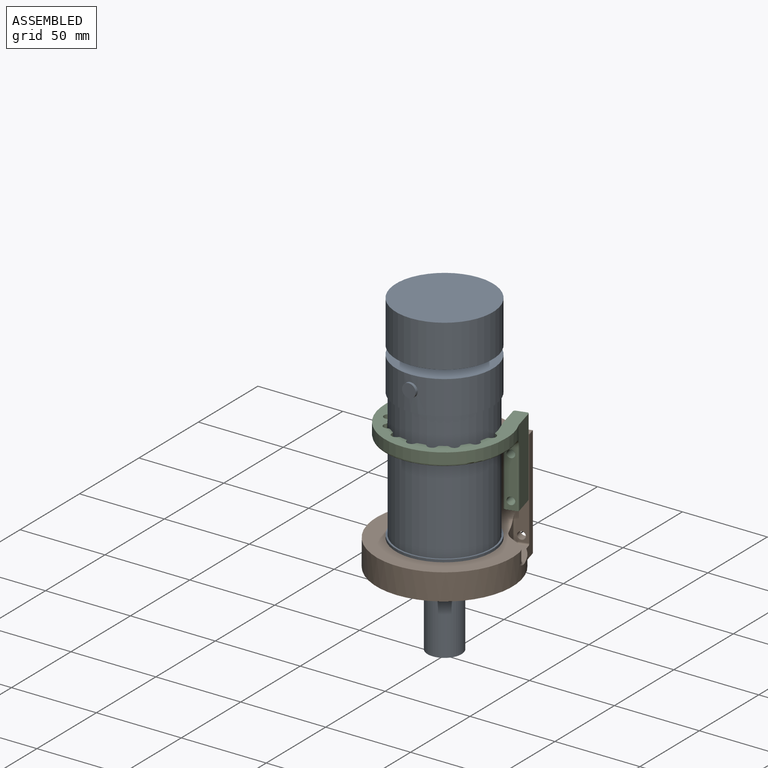
[diagram: assembled view]
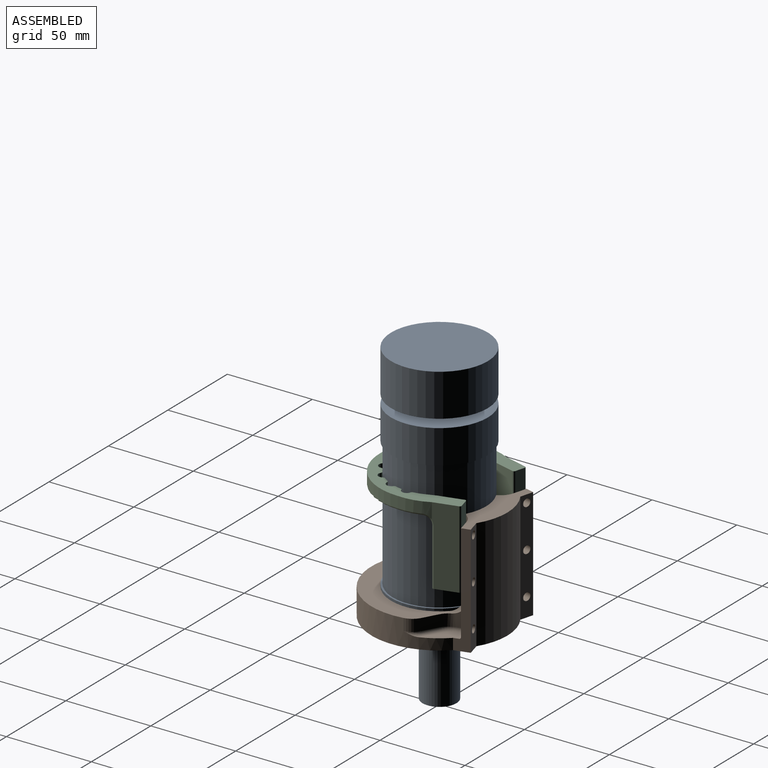
[diagram: assembled view, second angle]
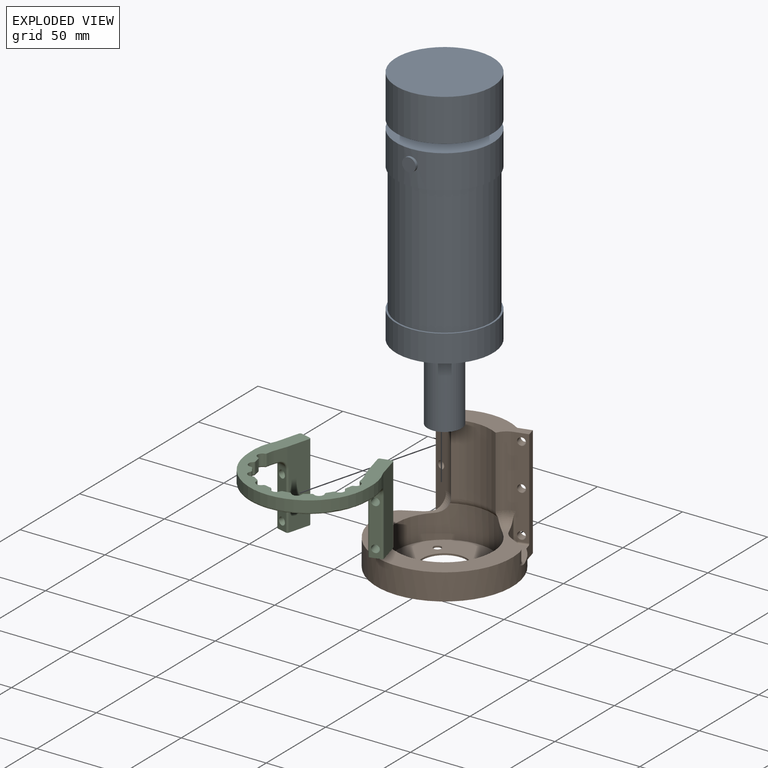
[diagram: exploded view]
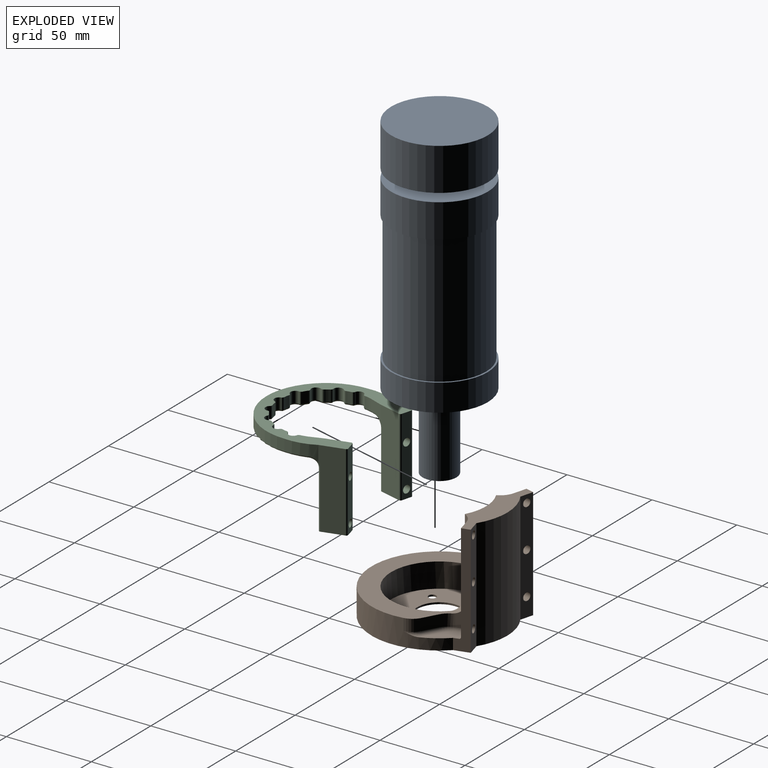
[diagram: exploded view, second angle]
ASSEMBLY  parts=3 mates=2
PART A: 25 faces, bbox 58.5x57x187 mm
  f0: cylinder r=28.5mm len=57mm, axis (0,0,-1), area 3531mm2, adj f2,f7,f23
  f1: cylinder r=4mm len=8mm, axis (0,0,1), area 125.7mm2, adj f2,f4
  f2: plane 57x57mm, normal (0,0,-1), area 2501.5mm2, adj f0,f1
  f3: cylinder r=28.5mm len=57mm, axis (0,0,-1), area 4476.8mm2, adj f4,f5
  f4: plane 57x57mm, normal (0,0,1), area 2501.5mm2, adj f1,f3
  f5: plane 57x57mm, normal (0,0,-1), area 2551.8mm2, adj f3
  f6: cylinder r=27.5mm len=76mm, axis (0,0,1), area 13131.9mm2, adj f7,f8
  f7: plane 57x57mm, normal (0,0,1), area 175.9mm2, adj f0,f6
  f8: plane 57x57mm, normal (0,0,-1), area 175.9mm2, adj f6,f22
  f9: plane 20x20mm, normal (0,0,1), area 314.2mm2, adj f10
  f10: cylinder r=10mm len=43mm, axis (0,0,-1), area 2701.8mm2, adj f9,f11
  f11: plane 25x25mm, normal (0,0,1), area 176.7mm2, adj f10,f16
  f12: plane 4x4mm, normal (0,0,1), area 12.6mm2, adj f17
  f13: plane 4x4mm, normal (0,0,1), area 12.6mm2, adj f18
  f14: plane 4x4mm, normal (0,0,1), area 12.6mm2, adj f19
  f15: plane 4x4mm, normal (0,0,1), area 12.6mm2, adj f20
  f16: cylinder r=12.5mm len=25mm, axis (0,0,-1), area 157.1mm2, adj f11,f21
  f17: cylinder r=2mm len=25mm, axis (0,0,1), area 314.2mm2, adj f12,f21
  f18: cylinder r=2mm len=25mm, axis (0,0,1), area 314.2mm2, adj f13,f21
  f19: cylinder r=2mm len=25mm, axis (0,0,1), area 314.2mm2, adj f14,f21
  f20: cylinder r=2mm len=25mm, axis (0,0,1), area 314.2mm2, adj f15,f21
  f21: plane 57x57mm, normal (0,0,1), area 2010.6mm2, adj f16,f17,f18,f19,f20,f22
  f22: cylinder r=28.5mm len=57mm, axis (0,0,-1), area 2865.1mm2, adj f8,f21
  f23: cylinder r=4mm len=8mm, axis (-1,0,0), area 41.2mm2, adj f0,f24
  f24: plane 8x8mm, normal (1,0,0), area 50.3mm2, adj f23
PART B: 62 faces, bbox 87.9x80x65.5 mm
  f0: cylinder r=8mm len=3.87mm, axis (0.97,-0.26,0), area 1.6mm2, adj f14,f48,f60
  f1: cylinder r=8mm len=2.26mm, axis (-0.97,-0.26,0), area 0.3mm2, adj f3,f36,f57
  f2: cylinder r=28.5mm len=57mm, axis (0,0,-1), area 2764.9mm2, adj f3,f27,f55,f56,f59
  f3: plane 80x62.22mm, normal (0,0,1), area 1630.6mm2, adj f1,f2,f4,f12,f15,f34,f35,f36
  f4: cylinder r=40mm len=80mm, axis (0,0,-1), area 2479mm2, adj f3,f7,f8,f13,f17,f33,f35,f37
  f5: cylinder r=35mm len=65.5mm, axis (0,0,-1), area 2553.5mm2, adj f6,f9,f20,f33
  f6: plane 65.5x7.73mm, normal (0.26,0.97,0), area 476.3mm2, adj f5,f7,f20,f21,f22,f23,f33
  f7: plane 65.5x8.8mm, normal (-0.97,0.26,0), area 354.4mm2, adj f4,f6,f14,f17,f20,f33,f46
  f8: plane 65.5x8.8mm, normal (0.97,0.26,0), area 354.4mm2, adj f4,f9,f10,f13,f20,f33,f49
  f9: plane 65.5x7.73mm, normal (-0.26,0.97,0), area 476.3mm2, adj f5,f8,f20,f24,f25,f26,f33
  f10: plane 58x7.73mm, normal (0.26,-0.97,0), area 400.1mm2, adj f8,f19,f20,f24,f25,f26,f49,f50
  f11: plane 11.13x4.57mm, normal (0.97,0.26,0), area 41.2mm2, adj f36,f41,f51,f57
  f12: plane 8.3x7mm, normal (0.48,0.88,0), area 66.3mm2, adj f3,f36,f37,f39
  f13: plane 17.12x15.54mm, normal (0,0,1), area 100.5mm2, adj f4,f8,f38,f39,f40,f41,f49
  f14: plane 58x7.73mm, normal (-0.26,-0.97,0), area 400.1mm2, adj f0,f7,f18,f20,f21,f22,f23,f46
  f15: plane 8.3x7mm, normal (-0.48,0.88,0), area 66.3mm2, adj f3,f34,f35,f43
  f16: plane 11.13x4.57mm, normal (-0.97,0.26,0), area 41.2mm2, adj f34,f45,f48,f60
  f17: plane 17.12x15.54mm, normal (0,0,1), area 100.5mm2, adj f4,f7,f42,f43,f44,f45,f46
  f18: cylinder r=10mm len=42mm, axis (0,0,-1), area 338.8mm2, adj f14,f20,f52,f60
  f19: cylinder r=10mm len=42mm, axis (0,0,-1), area 338.8mm2, adj f10,f20,f54,f57
  f20: plane 55.04x15.84mm, normal (0,0,1), area 515.1mm2, adj f5,f6,f7,f8,f9,f10,f14,f18
  f21: cylinder r=2.25mm len=5.99mm, axis (0.26,0.97,0), area 70.7mm2, adj f6,f14
  f22: cylinder r=2.25mm len=5.99mm, axis (0.26,0.97,0), area 70.7mm2, adj f6,f14
  f23: cylinder r=2.25mm len=5.99mm, axis (0.26,0.97,0), area 70.7mm2, adj f6,f14
  f24: cylinder r=2.25mm len=5.99mm, axis (-0.26,0.97,0), area 70.7mm2, adj f9,f10
  f25: cylinder r=2.25mm len=5.99mm, axis (-0.26,0.97,0), area 70.7mm2, adj f9,f10
  f26: cylinder r=2.25mm len=5.99mm, axis (-0.26,0.97,0), area 70.7mm2, adj f9,f10
  f27: plane 57x57mm, normal (0,0,1), area 1957.2mm2, adj f2,f28,f29,f30,f31,f32
  f28: cylinder r=2.25mm len=4.5mm, axis (0,0,1), area 14.1mm2, adj f27,f33
  f29: cylinder r=2.25mm len=4.5mm, axis (0,0,1), area 14.1mm2, adj f27,f33
  f30: cylinder r=2.25mm len=4.5mm, axis (0,0,1), area 14.1mm2, adj f27,f33
  f31: cylinder r=2.25mm len=4.5mm, axis (0,0,1), area 14.1mm2, adj f27,f33
  f32: cylinder r=13mm len=26mm, axis (0,0,1), area 81.7mm2, adj f27,f33
  f33: plane 80x80mm, normal (0,0,-1), area 4480.5mm2, adj f4,f5,f6,f7,f8,f9,f28,f29
  f34: cylinder r=10mm len=7.33mm, axis (0,0,-1), area 56.8mm2, adj f3,f15,f16,f44,f61
  f35: cylinder r=10mm len=7.15mm, axis (0,0,-1), area 63.4mm2, adj f3,f4,f15,f42
  f36: cylinder r=10mm len=7.33mm, axis (0,0,-1), area 56.8mm2, adj f1,f3,f11,f12,f40
  f37: cylinder r=10mm len=7.15mm, axis (0,0,-1), area 63.4mm2, adj f3,f4,f12,f38
  f38: torus R=12mm, axis (0,0,1), area 17.6mm2, adj f4,f13,f37,f39
  f39: cylinder r=2mm len=9.26mm, axis (0.88,-0.48,0), area 29.7mm2, adj f12,f13,f38,f40
  f40: torus R=8mm, axis (0,0,1), area 23.5mm2, adj f13,f36,f39,f41
  f41: cylinder r=2mm len=5.09mm, axis (0.26,-0.97,0), area 14.9mm2, adj f11,f13,f40,f50
  f42: torus R=12mm, axis (0,0,1), area 17.6mm2, adj f4,f17,f35,f43
  f43: cylinder r=2mm len=9.26mm, axis (0.88,0.48,0), area 29.7mm2, adj f15,f17,f42,f44
  f44: torus R=8mm, axis (0,0,1), area 23.5mm2, adj f17,f34,f43,f45
  f45: cylinder r=2mm len=5.09mm, axis (0.26,0.97,0), area 14.9mm2, adj f16,f17,f44,f47
  f46: cylinder r=1mm len=6.05mm, axis (-0.97,0.26,0), area 9.4mm2, adj f7,f14,f17,f47
  f47: torus R=1mm, axis (0.26,0.97,0), area 4mm2, adj f14,f45,f46,f48
  f48: cylinder r=1mm len=15mm, axis (0,0,1), area 20.5mm2, adj f0,f14,f16,f47
  f49: cylinder r=1mm len=6.05mm, axis (-0.97,-0.26,0), area 9.4mm2, adj f8,f10,f13,f50
  f50: torus R=1mm, axis (0.26,-0.97,0), area 4mm2, adj f10,f41,f49,f51
  f51: cylinder r=1mm len=15mm, axis (0,0,1), area 20.5mm2, adj f10,f11,f50,f58
  f52: plane 42x0.88mm, normal (-0.88,-0.48,0), area 42mm2, adj f18,f20,f53,f59
  f53: cylinder r=27.5mm len=42mm, axis (0,0,-1), area 1150.4mm2, adj f20,f52,f54,f55
  f54: plane 42x0.88mm, normal (0.88,-0.48,0), area 42mm2, adj f19,f20,f53,f56
  f55: torus R=32.5mm, axis (0,0,-1), area 91.1mm2, adj f2,f53,f56,f59
  f56: cylinder r=8mm len=8mm, axis (0.48,0.88,0), area 5.2mm2, adj f2,f3,f54,f55,f57
  f57: torus R=2mm, axis (0,0,1), area 71.9mm2, adj f1,f3,f11,f19,f56,f58
  f58: cylinder r=8mm len=3.87mm, axis (-0.97,-0.26,0), area 1.6mm2, adj f10,f51,f57
  f59: cylinder r=8mm len=8mm, axis (-0.48,0.88,0), area 5.2mm2, adj f2,f3,f52,f55,f60
  f60: torus R=2mm, axis (0,0,1), area 71.9mm2, adj f0,f3,f16,f18,f59,f61
  f61: cylinder r=8mm len=2.26mm, axis (0.97,-0.26,0), area 0.3mm2, adj f3,f34,f60
PART C: 118 faces, bbox 75.8x69.7x46 mm
  f0: plane 68.19x46.56mm, normal (0,0,1), area 539.4mm2, adj f58,f59,f63,f64,f65,f66,f67,f68
  f1: cylinder r=2.75mm len=6.5mm, axis (0,0,-1), area 47.2mm2, adj f31,f32,f49,f74
  f2: cylinder r=27.55mm len=6.5mm, axis (0,0,-1), area 22mm2, adj f31,f32,f33,f76
  f3: cylinder r=2.75mm len=6.5mm, axis (0,0,-1), area 47.2mm2, adj f31,f33,f34,f78
  f4: cylinder r=27.55mm len=6.5mm, axis (0,0,-1), area 22mm2, adj f31,f34,f35,f80
  f5: cylinder r=2.75mm len=6.5mm, axis (0,0,-1), area 47.2mm2, adj f31,f35,f36,f82
  f6: cylinder r=27.55mm len=6.5mm, axis (0,0,-1), area 22mm2, adj f31,f36,f37,f84
  f7: cylinder r=2.75mm len=6.5mm, axis (0,0,-1), area 47.2mm2, adj f31,f37,f38,f86
  f8: cylinder r=27.55mm len=6.5mm, axis (0,0,-1), area 22mm2, adj f31,f38,f39,f88
  f9: cylinder r=2.75mm len=6.5mm, axis (0,0,-1), area 47.2mm2, adj f31,f39,f40,f90
  f10: cylinder r=27.55mm len=6.5mm, axis (0,0,-1), area 22mm2, adj f31,f40,f41,f92
  f11: cylinder r=2.75mm len=6.5mm, axis (0,0,-1), area 47.2mm2, adj f31,f41,f42,f94
  f12: cylinder r=27.55mm len=6.5mm, axis (0,0,-1), area 22mm2, adj f31,f42,f43,f97
  f13: cylinder r=2.75mm len=6.5mm, axis (0,0,-1), area 47.2mm2, adj f31,f43,f44,f101
  f14: cylinder r=27.55mm len=6.5mm, axis (0,0,-1), area 28mm2, adj f15,f31,f44,f104
  f15: plane 9.29x7.49mm, normal (0.94,-0.34,0), area 55.9mm2, adj f14,f16,f31,f98,f100,f102
  f16: plane 46x13.52mm, normal (0.97,-0.26,0), area 608.2mm2, adj f15,f31,f55,f96,f98,f114
  f17: plane 46x5.8mm, normal (0.26,0.97,0), area 244.2mm2, adj f31,f54,f55,f56,f114,f115
  f18: plane 46.05x13.64mm, normal (-0.97,0.26,0), area 608.3mm2, adj f19,f31,f55,f110,f112,f113,f115
  f19: cylinder r=32.16mm len=17.46mm, axis (0,0,-1), area 123.4mm2, adj f18,f20,f31,f111,f113
  f20: cylinder r=35mm len=70mm, axis (0,0,-1), area 714.7mm2, adj f19,f21,f31,f109
  f21: cylinder r=32.16mm len=17.46mm, axis (0,0,-1), area 123.4mm2, adj f20,f22,f31,f107,f108
  f22: plane 46.05x13.64mm, normal (0.97,0.26,0), area 608.3mm2, adj f21,f31,f51,f105,f106,f107,f116
  f23: plane 46x5.8mm, normal (-0.26,0.97,0), area 244.2mm2, adj f31,f50,f51,f52,f116,f117
  f24: plane 46x13.52mm, normal (-0.97,-0.26,0), area 608.2mm2, adj f25,f31,f51,f60,f61,f117
  f25: plane 9.29x7.49mm, normal (-0.94,-0.34,0), area 55.9mm2, adj f24,f26,f31,f61,f62,f63
  f26: cylinder r=27.55mm len=6.5mm, axis (0,0,-1), area 28.1mm2, adj f25,f31,f45,f64
  f27: cylinder r=2.75mm len=6.5mm, axis (0,0,-1), area 47.2mm2, adj f31,f45,f46,f66
  f28: cylinder r=27.55mm len=6.5mm, axis (0,0,-1), area 22mm2, adj f31,f46,f47,f68
  f29: cylinder r=2.75mm len=6.5mm, axis (0,0,-1), area 47.2mm2, adj f31,f47,f48,f70
  f30: cylinder r=27.55mm len=6.5mm, axis (0,0,-1), area 22mm2, adj f31,f48,f49,f72
  f31: plane 70.19x66.73mm, normal (0,0,-1), area 1130.2mm2, adj f1,f2,f3,f4,f5,f6,f7,f8
  f32: cylinder r=1.25mm len=6.5mm, axis (0,0,-1), area 9.6mm2, adj f1,f2,f31,f75
  f33: cylinder r=1.25mm len=6.5mm, axis (0,0,-1), area 9.6mm2, adj f2,f3,f31,f77
  f34: cylinder r=1.25mm len=6.5mm, axis (0,0,-1), area 9.6mm2, adj f3,f4,f31,f79
  f35: cylinder r=1.25mm len=6.5mm, axis (0,0,-1), area 9.6mm2, adj f4,f5,f31,f81
  f36: cylinder r=1.25mm len=6.5mm, axis (0,0,-1), area 9.6mm2, adj f5,f6,f31,f83
  f37: cylinder r=1.25mm len=6.5mm, axis (0,0,-1), area 9.6mm2, adj f6,f7,f31,f85
  f38: cylinder r=1.25mm len=6.5mm, axis (0,0,-1), area 9.6mm2, adj f7,f8,f31,f87
  f39: cylinder r=1.25mm len=6.5mm, axis (0,0,-1), area 9.6mm2, adj f8,f9,f31,f89
  f40: cylinder r=1.25mm len=6.5mm, axis (0,0,-1), area 9.6mm2, adj f9,f10,f31,f91
  f41: cylinder r=1.25mm len=6.5mm, axis (0,0,-1), area 9.6mm2, adj f10,f11,f31,f93
  f42: cylinder r=1.25mm len=6.5mm, axis (0,0,-1), area 9.6mm2, adj f11,f12,f31,f95
  f43: cylinder r=1.25mm len=6.5mm, axis (0,0,-1), area 9.6mm2, adj f12,f13,f31,f99
  f44: cylinder r=1.25mm len=6.5mm, axis (0,0,-1), area 9.6mm2, adj f13,f14,f31,f103
  f45: cylinder r=1.25mm len=6.5mm, axis (0,0,-1), area 9.6mm2, adj f26,f27,f31,f65
  f46: cylinder r=1.25mm len=6.5mm, axis (0,0,-1), area 9.6mm2, adj f27,f28,f31,f67
  f47: cylinder r=1.25mm len=6.5mm, axis (0,0,-1), area 9.6mm2, adj f28,f29,f31,f69
  f48: cylinder r=1.25mm len=6.5mm, axis (0,0,-1), area 9.6mm2, adj f29,f30,f31,f71
  f49: cylinder r=1.25mm len=6.5mm, axis (0,0,-1), area 9.6mm2, adj f1,f30,f31,f73
  f50: cylinder r=2.25mm len=15.65mm, axis (-0.26,0.97,0), area 212.1mm2, adj f23,f53
  f51: plane 16.11x11.16mm, normal (0,0,1), area 119.1mm2, adj f22,f23,f24,f53,f60,f105,f116,f117
  f52: cylinder r=2.25mm len=15.65mm, axis (-0.26,0.97,0), area 212.1mm2, adj f23,f53
  f53: plane 33.5x5.8mm, normal (0.26,-0.97,0), area 169.2mm2, adj f50,f51,f52,f59,f60,f105
  f54: cylinder r=2.25mm len=15.65mm, axis (0.26,0.97,0), area 212.1mm2, adj f17,f57
  f55: plane 16.11x11.16mm, normal (0,0,1), area 119.1mm2, adj f16,f17,f18,f57,f96,f110,f114,f115
  f56: cylinder r=2.25mm len=15.65mm, axis (0.26,0.97,0), area 212.1mm2, adj f17,f57
  f57: plane 33.5x5.8mm, normal (-0.26,-0.97,0), area 169.2mm2, adj f54,f55,f56,f58,f96,f110
  f58: cylinder r=5mm len=7.79mm, axis (-0.97,0.26,0), area 47.8mm2, adj f0,f57,f98,f100,f112,f113
  f59: cylinder r=5mm len=7.79mm, axis (0.97,0.26,0), area 47.8mm2, adj f0,f53,f61,f62,f106,f107
  f60: cylinder r=1mm len=33.5mm, axis (0,0,-1), area 52.6mm2, adj f24,f51,f53,f61
  f61: torus R=6mm, axis (0.97,0.26,0), area 4.8mm2, adj f24,f25,f59,f60,f62
  f62: bspline ~4.77x3.31mm, area 8.3mm2, adj f25,f59,f61,f63
  f63: cylinder r=1mm len=3.04mm, axis (-0.34,0.94,0), area 4.5mm2, adj f0,f25,f62,f64
  f64: torus R=28.55mm, axis (0,0,1), area 6.9mm2, adj f0,f26,f63,f65
  f65: torus R=0.25mm, axis (0,0,1), area 1.7mm2, adj f0,f45,f64,f66
  f66: torus R=3.75mm, axis (0,0,1), area 12.9mm2, adj f0,f27,f65,f67
  f67: torus R=0.25mm, axis (0,0,1), area 1.7mm2, adj f0,f46,f66,f68
  f68: torus R=28.55mm, axis (0,0,1), area 5.4mm2, adj f0,f28,f67,f69
  f69: torus R=0.25mm, axis (0,0,1), area 1.7mm2, adj f0,f47,f68,f70
  f70: torus R=3.75mm, axis (0,0,1), area 12.9mm2, adj f0,f29,f69,f71
  f71: torus R=0.25mm, axis (0,0,1), area 1.7mm2, adj f0,f48,f70,f72
  f72: torus R=28.55mm, axis (0,0,1), area 5.4mm2, adj f0,f30,f71,f73
  f73: torus R=0.25mm, axis (0,0,1), area 1.7mm2, adj f0,f49,f72,f74
  f74: torus R=3.75mm, axis (0,0,1), area 12.9mm2, adj f0,f1,f73,f75
  f75: torus R=0.25mm, axis (0,0,1), area 1.7mm2, adj f0,f32,f74,f76
  f76: torus R=28.55mm, axis (0,0,1), area 5.4mm2, adj f0,f2,f75,f77
  f77: torus R=0.25mm, axis (0,0,1), area 1.7mm2, adj f0,f33,f76,f78
  f78: torus R=3.75mm, axis (0,0,1), area 12.9mm2, adj f0,f3,f77,f79
  f79: torus R=0.25mm, axis (0,0,1), area 1.7mm2, adj f0,f34,f78,f80
  f80: torus R=28.55mm, axis (0,0,1), area 5.4mm2, adj f0,f4,f79,f81
  f81: torus R=0.25mm, axis (0,0,1), area 1.7mm2, adj f0,f35,f80,f82
  f82: torus R=3.75mm, axis (0,0,1), area 12.9mm2, adj f0,f5,f81,f83
  f83: torus R=0.25mm, axis (0,0,1), area 1.7mm2, adj f0,f36,f82,f84
  f84: torus R=28.55mm, axis (0,0,1), area 5.4mm2, adj f0,f6,f83,f85
  f85: torus R=0.25mm, axis (0,0,1), area 1.7mm2, adj f0,f37,f84,f86
  f86: torus R=3.75mm, axis (0,0,1), area 12.9mm2, adj f0,f7,f85,f87
  f87: torus R=0.25mm, axis (0,0,1), area 1.7mm2, adj f0,f38,f86,f88
  f88: torus R=28.55mm, axis (0,0,1), area 5.4mm2, adj f0,f8,f87,f89
  f89: torus R=0.25mm, axis (0,0,1), area 1.7mm2, adj f0,f39,f88,f90
  f90: torus R=3.75mm, axis (0,0,1), area 12.9mm2, adj f0,f9,f89,f91
  f91: torus R=0.25mm, axis (0,0,1), area 1.7mm2, adj f0,f40,f90,f92
  f92: torus R=28.55mm, axis (0,0,1), area 5.4mm2, adj f0,f10,f91,f93
  f93: torus R=0.25mm, axis (0,0,1), area 1.7mm2, adj f0,f41,f92,f94
  f94: torus R=3.75mm, axis (0,0,1), area 12.9mm2, adj f0,f11,f93,f95
  f95: torus R=0.25mm, axis (0,0,1), area 1.7mm2, adj f0,f42,f94,f97
  f96: cylinder r=1mm len=33.5mm, axis (0,0,-1), area 52.6mm2, adj f16,f55,f57,f98
  f97: torus R=28.55mm, axis (0,0,1), area 5.4mm2, adj f0,f12,f95,f99
  f98: torus R=6mm, axis (0.97,-0.26,0), area 4.8mm2, adj f15,f16,f58,f96,f100
  f99: torus R=0.25mm, axis (0,0,1), area 1.7mm2, adj f0,f43,f97,f101
  f100: bspline ~4.77x3.31mm, area 8.3mm2, adj f15,f58,f98,f102
  f101: torus R=3.75mm, axis (0,0,1), area 12.9mm2, adj f0,f13,f99,f103
  f102: cylinder r=1mm len=3.04mm, axis (-0.34,-0.94,0), area 4.5mm2, adj f0,f15,f100,f104
  f103: torus R=0.25mm, axis (0,0,1), area 1.7mm2, adj f0,f44,f101,f104
  f104: torus R=28.55mm, axis (0,0,1), area 6.9mm2, adj f0,f14,f102,f103
  f105: cylinder r=1mm len=33.5mm, axis (0,0,-1), area 52.6mm2, adj f22,f51,f53,f106
  f106: torus R=6mm, axis (0.97,0.26,0), area 5.1mm2, adj f22,f59,f105,f107
  f107: bspline ~6.4x3.71mm, area 8.6mm2, adj f21,f22,f59,f106,f108
  f108: torus R=31.16mm, axis (0,0,1), area 20.3mm2, adj f0,f21,f107,f109
  f109: torus R=34mm, axis (0,0,1), area 171mm2, adj f0,f20,f108,f111
  f110: cylinder r=1mm len=33.5mm, axis (0,0,1), area 52.6mm2, adj f18,f55,f57,f112
  f111: torus R=31.16mm, axis (0,0,1), area 20.3mm2, adj f0,f19,f109,f113
  f112: torus R=6mm, axis (0.97,-0.26,0), area 5.1mm2, adj f18,f58,f110,f113
  f113: bspline ~6.4x3.71mm, area 8.6mm2, adj f18,f19,f58,f111,f112
  f114: cylinder r=1mm len=46mm, axis (0,0,1), area 72.3mm2, adj f16,f17,f31,f55
  f115: cylinder r=1mm len=46mm, axis (0,0,-1), area 72.3mm2, adj f17,f18,f31,f55
  f116: cylinder r=1mm len=46mm, axis (0,0,-1), area 72.3mm2, adj f22,f23,f31,f51
  f117: cylinder r=1mm len=46mm, axis (0,0,1), area 72.3mm2, adj f23,f24,f31,f51
PLACE A rot(axis=(0.71,-0.71,0),180deg) t=(0,0,57)mm
PLACE B t=(0,0,1)mm
PLACE C rot(axis=(0,-1,0),180deg) t=(0,0,77)mm
MATE fastened C.f50 <-> B.f21  axis (0.26,0.97,0) through (-23.66,30.92,61)mm
MATE fastened B.f29 <-> A.f19  axis (0,0,1) through (14,-14,1)mm
